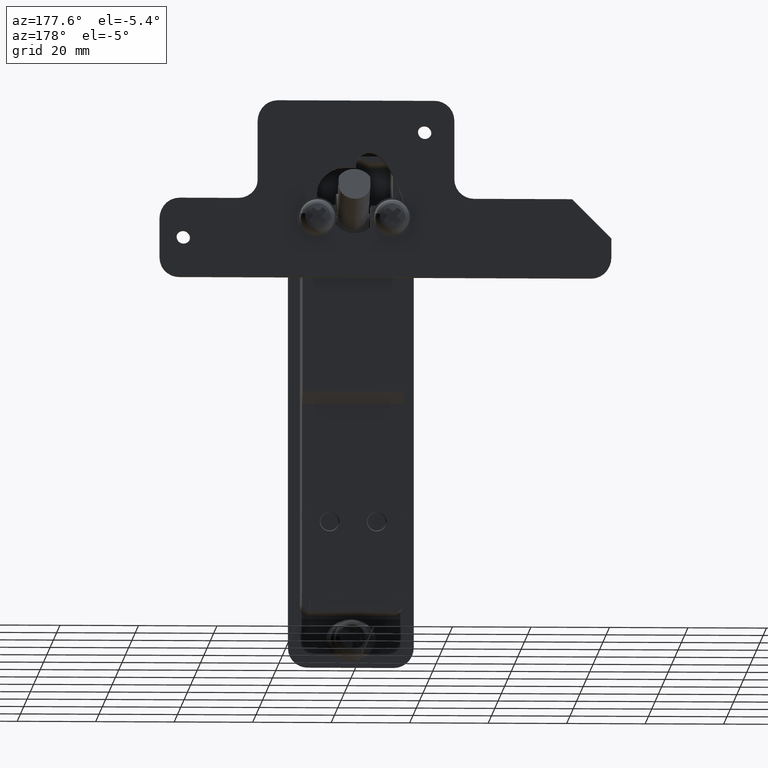
[diagram: clean part render]
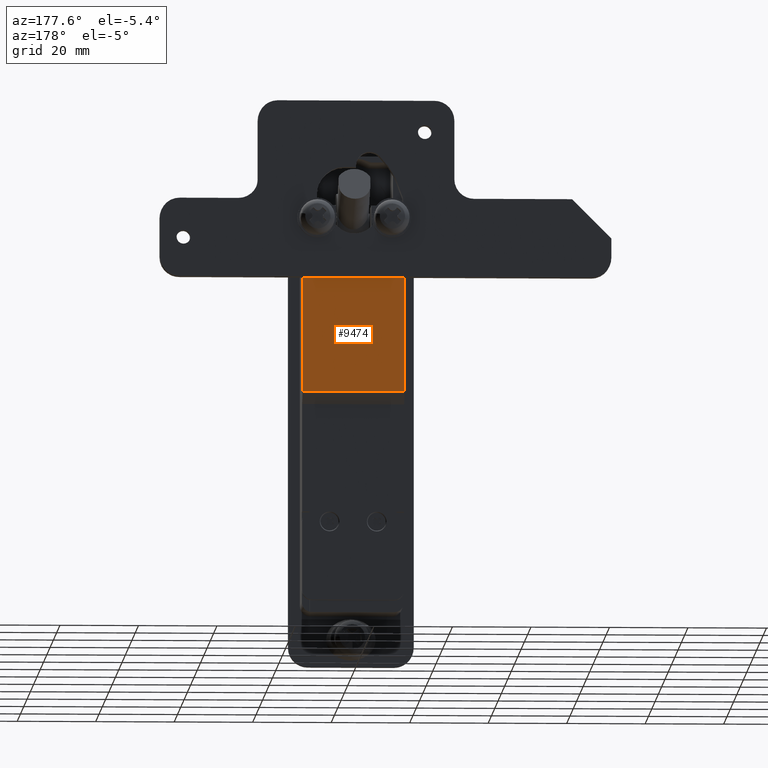
[diagram: same view with one face highlighted and labeled with its STEP entity id]
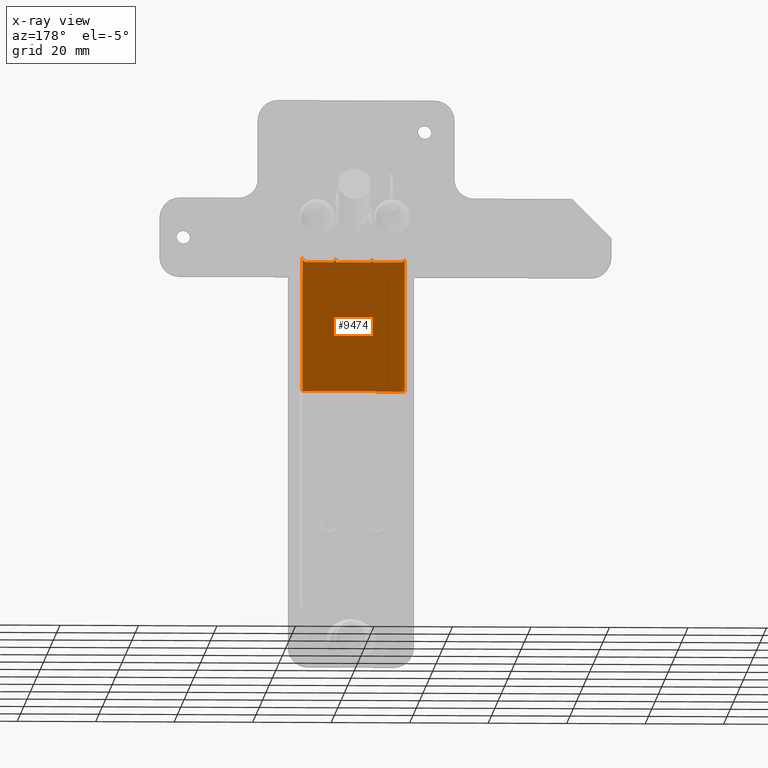
[diagram: x-ray of the same camera — body ghosted, the highlighted face saturated]
A machine part, auxiliary view. The second image highlights one B-rep face of the part: STEP entity #9474.
The next image is the same camera in x-ray: the body ghosted, the highlighted face saturated — about 0% of this face is hidden behind the body in this view.
In plain terms, the highlighted face is a freeform B-spline surface patch.
Its self-contained STEP definition (entity closure, byte-faithful):
#7637=CARTESIAN_POINT('',(16.500000000000000,-4.500000000000000,-33.0));
#7638=VERTEX_POINT('',#7637);
#7639=CARTESIAN_POINT('',(16.500000000000000,4.499999999999945,-33.0));
#7640=VERTEX_POINT('',#7639);
#7641=CARTESIAN_POINT('',(16.500000000000000,-4.500000000000000,-33.0));
#7642=CARTESIAN_POINT('',(16.500000000000000,4.499999999999945,-33.0));
#7643=QUASI_UNIFORM_CURVE('',1,(#7641,#7642),.UNSPECIFIED.,.F.,.U.);
#7644=EDGE_CURVE('',#7638,#7640,#7643,.T.);
#7825=CARTESIAN_POINT('',(16.500000000000000,12.0,-33.0));
#7826=VERTEX_POINT('',#7825);
#7832=CARTESIAN_POINT('',(16.500000000000000,13.0,-32.0));
#7833=VERTEX_POINT('',#7832);
#7834=CARTESIAN_POINT('',(16.500000000000000,12.0,-33.0));
#7835=CARTESIAN_POINT('',(16.500000000000000,12.147312775199531,-33.000241704277833));
#7836=CARTESIAN_POINT('',(16.500000000000011,12.392533258602130,-32.944740053653391));
#7837=CARTESIAN_POINT('',(16.500000000000011,12.653818087755230,-32.770115480565508));
#7838=CARTESIAN_POINT('',(16.499999999999972,12.841566160600371,-32.563012853939981));
#7839=CARTESIAN_POINT('',(16.500000000000050,12.968464943817670,-32.310900781170652));
#7840=CARTESIAN_POINT('',(16.499999999999961,13.000035601587330,-32.098164671096733));
#7841=CARTESIAN_POINT('',(16.500000000000000,13.0,-32.0));
#7842=B_SPLINE_CURVE_WITH_KNOTS('',3,(#7834,#7835,#7836,#7837,#7838,#7839,#7840,#7841),.UNSPECIFIED.,.F.,.U.,(4,1,1,1,1,4),(0.000000306186064,0.441840022520827,0.736394799064984,0.932730981254917,1.276416878946581,1.570953883307817),.UNSPECIFIED.);
#7843=EDGE_CURVE('',#7826,#7833,#7842,.T.);
#7865=CARTESIAN_POINT('',(16.500000000000000,5.500000000000000,-33.0));
#7866=VERTEX_POINT('',#7865);
#7872=CARTESIAN_POINT('',(16.500000000000000,5.500000000000000,-33.0));
#7873=CARTESIAN_POINT('',(16.500000000000000,12.0,-33.0));
#7874=QUASI_UNIFORM_CURVE('',1,(#7872,#7873),.UNSPECIFIED.,.F.,.U.);
#7875=EDGE_CURVE('',#7866,#7826,#7874,.T.);
#7908=CARTESIAN_POINT('',(16.500000000000000,4.500000000000000,-32.0));
#7909=VERTEX_POINT('',#7908);
#7915=CARTESIAN_POINT('',(16.500000000000000,4.500000000000000,-32.0));
#7916=CARTESIAN_POINT('',(16.500000000000011,4.499963026649120,-32.098172223567239));
#7917=CARTESIAN_POINT('',(16.500000000000028,4.531535765312621,-32.310892005146812));
#7918=CARTESIAN_POINT('',(16.499999999999940,4.658430365665642,-32.563020488130761));
#7919=CARTESIAN_POINT('',(16.500000000000050,4.846189848170181,-32.770102976298183));
#7920=CARTESIAN_POINT('',(16.499999999999989,5.107452261685154,-32.944762103206067));
#7921=CARTESIAN_POINT('',(16.499999999999972,5.352695191709820,-33.000230557029226));
#7922=CARTESIAN_POINT('',(16.500000000000000,5.500000000000000,-33.0));
#7923=B_SPLINE_CURVE_WITH_KNOTS('',3,(#7915,#7916,#7917,#7918,#7919,#7920,#7921,#7922),.UNSPECIFIED.,.F.,.U.,(4,1,1,1,1,4),(0.000000306185223,0.294537310546619,0.638223208238431,0.834559390428501,1.129114166972858,1.570953883307846),.UNSPECIFIED.);
#7924=EDGE_CURVE('',#7909,#7866,#7923,.T.);
#7958=CARTESIAN_POINT('',(16.500000000000000,-5.500000000000000,-33.0));
#7959=VERTEX_POINT('',#7958);
#7965=CARTESIAN_POINT('',(16.500000000000000,-4.500000000000000,-32.0));
#7966=VERTEX_POINT('',#7965);
#7967=CARTESIAN_POINT('',(16.500000000000000,-5.500000000000000,-33.0));
#7968=CARTESIAN_POINT('',(16.500000000000000,-5.319914865860882,-33.000489280656090));
#7969=CARTESIAN_POINT('',(16.499999999999989,-5.009535199194286,-32.913722075523118));
#7970=CARTESIAN_POINT('',(16.500000000000000,-4.725368585665859,-32.656013162600829));
#7971=CARTESIAN_POINT('',(16.500000000000000,-4.547884049320698,-32.359809262841232));
#7972=CARTESIAN_POINT('',(16.500000000000011,-4.499755143631974,-32.147319389014790));
#7973=CARTESIAN_POINT('',(16.500000000000000,-4.500000000000000,-32.0));
#7974=B_SPLINE_CURVE_WITH_KNOTS('',3,(#7967,#7968,#7969,#7970,#7971,#7972,#7973),.UNSPECIFIED.,.F.,.U.,(4,1,1,1,4),(0.000000306186554,0.540037796221101,0.932730981255170,1.129114166973005,1.570953883307817),.UNSPECIFIED.);
#7975=EDGE_CURVE('',#7959,#7966,#7974,.T.);
#7997=CARTESIAN_POINT('',(16.500000000000000,-12.0,-33.0));
#7998=VERTEX_POINT('',#7997);
#8004=CARTESIAN_POINT('',(16.500000000000000,-12.0,-33.0));
#8005=CARTESIAN_POINT('',(16.500000000000000,-5.500000000000000,-33.0));
#8006=QUASI_UNIFORM_CURVE('',1,(#8004,#8005),.UNSPECIFIED.,.F.,.U.);
#8007=EDGE_CURVE('',#7998,#7959,#8006,.T.);
#8039=CARTESIAN_POINT('',(16.500000000000000,-13.0,-32.0));
#8040=VERTEX_POINT('',#8039);
#8046=CARTESIAN_POINT('',(16.500000000000000,-13.0,-32.0));
#8047=CARTESIAN_POINT('',(16.500000000000021,-13.000244446584050,-32.147318953794773));
#8048=CARTESIAN_POINT('',(16.499999999999979,-12.952116145954440,-32.359811316546761));
#8049=CARTESIAN_POINT('',(16.500000000000028,-12.774631762622940,-32.656011759176103));
#8050=CARTESIAN_POINT('',(16.499999999999979,-12.490463909942120,-32.913723181412948));
#8051=CARTESIAN_POINT('',(16.500000000000011,-12.180086059860701,-33.000489065221352));
#8052=CARTESIAN_POINT('',(16.500000000000000,-12.0,-33.0));
#8053=B_SPLINE_CURVE_WITH_KNOTS('',3,(#8046,#8047,#8048,#8049,#8050,#8051,#8052),.UNSPECIFIED.,.F.,.U.,(4,1,1,1,4),(0.000000306186253,0.441840022520930,0.638223208238769,1.030916393272908,1.570953883307814),.UNSPECIFIED.);
#8054=EDGE_CURVE('',#8040,#7998,#8053,.T.);
#8447=CARTESIAN_POINT('',(16.500000000000000,13.0,-66.0));
#8448=VERTEX_POINT('',#8447);
#8449=CARTESIAN_POINT('',(16.500000000000000,13.0,-32.0));
#8450=CARTESIAN_POINT('',(16.500000000000000,13.0,-66.0));
#8451=QUASI_UNIFORM_CURVE('',1,(#8449,#8450),.UNSPECIFIED.,.F.,.U.);
#8452=EDGE_CURVE('',#7833,#8448,#8451,.T.);
#8525=CARTESIAN_POINT('',(16.500000000000000,-13.0,-66.0));
#8526=VERTEX_POINT('',#8525);
#8534=CARTESIAN_POINT('',(16.500000000000000,13.0,-66.0));
#8535=CARTESIAN_POINT('',(16.500000000000000,-13.0,-66.0));
#8536=QUASI_UNIFORM_CURVE('',1,(#8534,#8535),.UNSPECIFIED.,.F.,.U.);
#8537=EDGE_CURVE('',#8448,#8526,#8536,.T.);
#9377=CARTESIAN_POINT('',(16.500000000000000,4.499999999999945,-33.0));
#9378=CARTESIAN_POINT('',(16.500000000000000,4.500000000000000,-32.0));
#9379=QUASI_UNIFORM_CURVE('',1,(#9377,#9378),.UNSPECIFIED.,.F.,.U.);
#9380=EDGE_CURVE('',#7640,#7909,#9379,.T.);
#9392=CARTESIAN_POINT('',(16.500000000000000,-4.500000000000000,-32.0));
#9393=CARTESIAN_POINT('',(16.500000000000000,-4.500000000000000,-33.0));
#9394=QUASI_UNIFORM_CURVE('',1,(#9392,#9393),.UNSPECIFIED.,.F.,.U.);
#9395=EDGE_CURVE('',#7966,#7638,#9394,.T.);
#9451=CARTESIAN_POINT('',(16.500000000000000,-14.298699949606959,-67.698299934101399));
#9452=CARTESIAN_POINT('',(16.500000000000000,-14.298699949606959,-30.301699153947538));
#9453=CARTESIAN_POINT('',(16.500000000000000,14.298700646981301,-67.698299934101399));
#9454=CARTESIAN_POINT('',(16.500000000000000,14.298700646981301,-30.301699153947538));
#9455=B_SPLINE_SURFACE_WITH_KNOTS('',1,1,((#9451,#9453),(#9452,#9454)),.UNSPECIFIED.,.F.,.F.,.U.,(2,2),(2,2),(0.0,37.396600780153861),(0.0,28.597400596588258),.UNSPECIFIED.);
#9456=ORIENTED_EDGE('',*,*,#9380,.F.);
#9457=ORIENTED_EDGE('',*,*,#7644,.F.);
#9458=ORIENTED_EDGE('',*,*,#9395,.F.);
#9459=ORIENTED_EDGE('',*,*,#7975,.F.);
#9460=ORIENTED_EDGE('',*,*,#8007,.F.);
#9461=ORIENTED_EDGE('',*,*,#8054,.F.);
#9462=CARTESIAN_POINT('',(16.500000000000000,-13.0,-32.0));
#9463=CARTESIAN_POINT('',(16.500000000000000,-13.0,-66.0));
#9464=QUASI_UNIFORM_CURVE('',1,(#9462,#9463),.UNSPECIFIED.,.F.,.U.);
#9465=EDGE_CURVE('',#8040,#8526,#9464,.T.);
#9466=ORIENTED_EDGE('',*,*,#9465,.T.);
#9467=ORIENTED_EDGE('',*,*,#8537,.F.);
#9468=ORIENTED_EDGE('',*,*,#8452,.F.);
#9469=ORIENTED_EDGE('',*,*,#7843,.F.);
#9470=ORIENTED_EDGE('',*,*,#7875,.F.);
#9471=ORIENTED_EDGE('',*,*,#7924,.F.);
#9472=EDGE_LOOP('',(#9456,#9457,#9458,#9459,#9460,#9461,#9466,#9467,#9468,#9469,#9470,#9471));
#9473=FACE_OUTER_BOUND('',#9472,.T.);
#9474=ADVANCED_FACE('',(#9473),#9455,.F.);